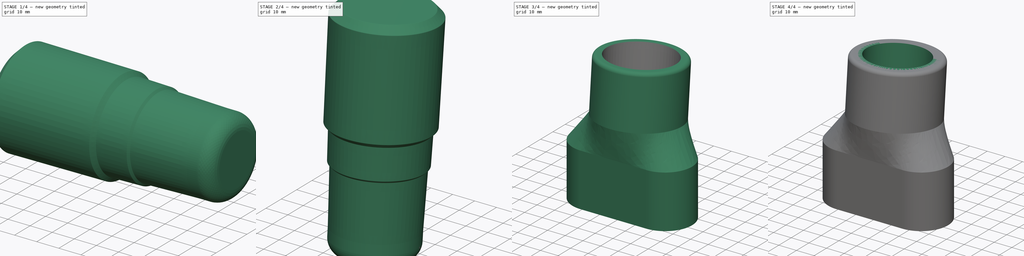
[diagram: build sequence overview — one tinted view per stage of 4, left to right]
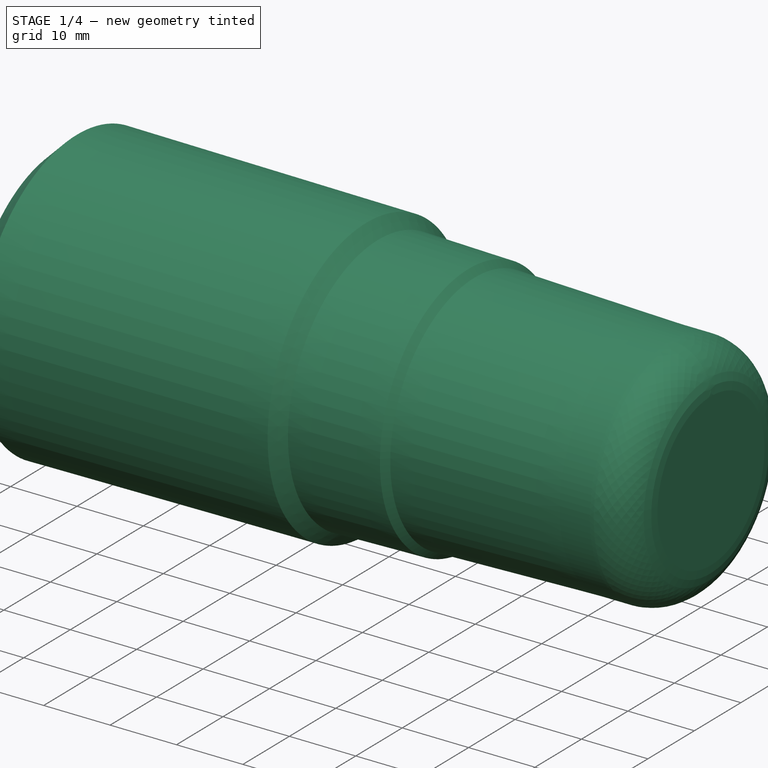
[diagram: stage 1 of 4 — iso view after this stage's code; geometry added in this stage tinted green]
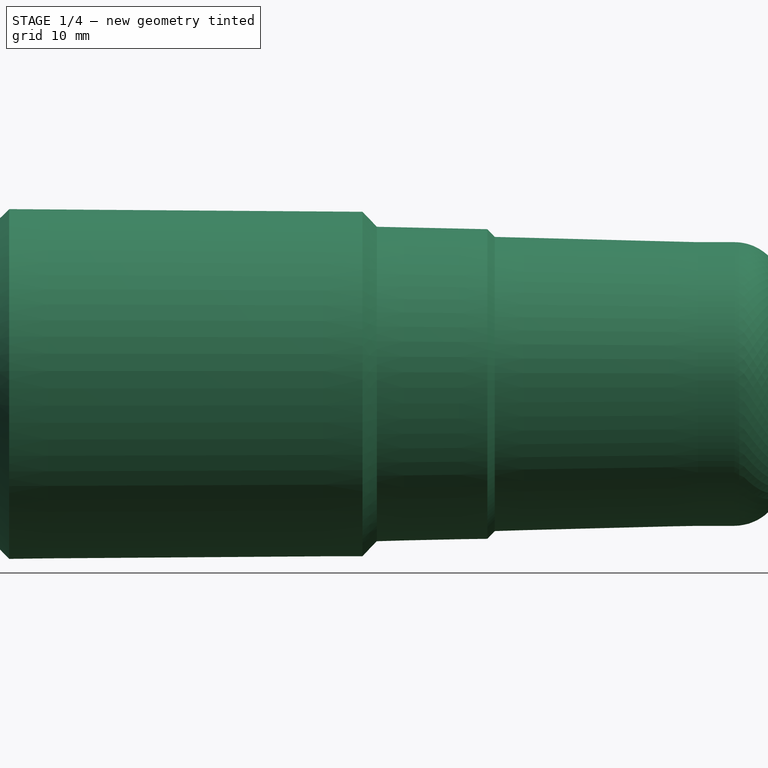
[diagram: stage 1 of 4 — front view after this stage's code; geometry added in this stage tinted green]
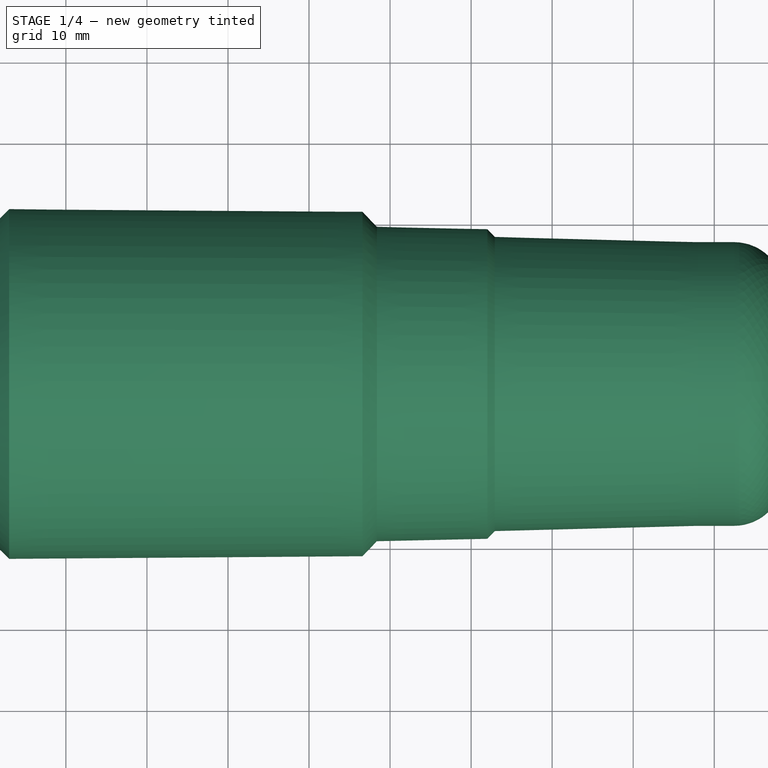
[diagram: stage 1 of 4 — top view after this stage's code; geometry added in this stage tinted green]
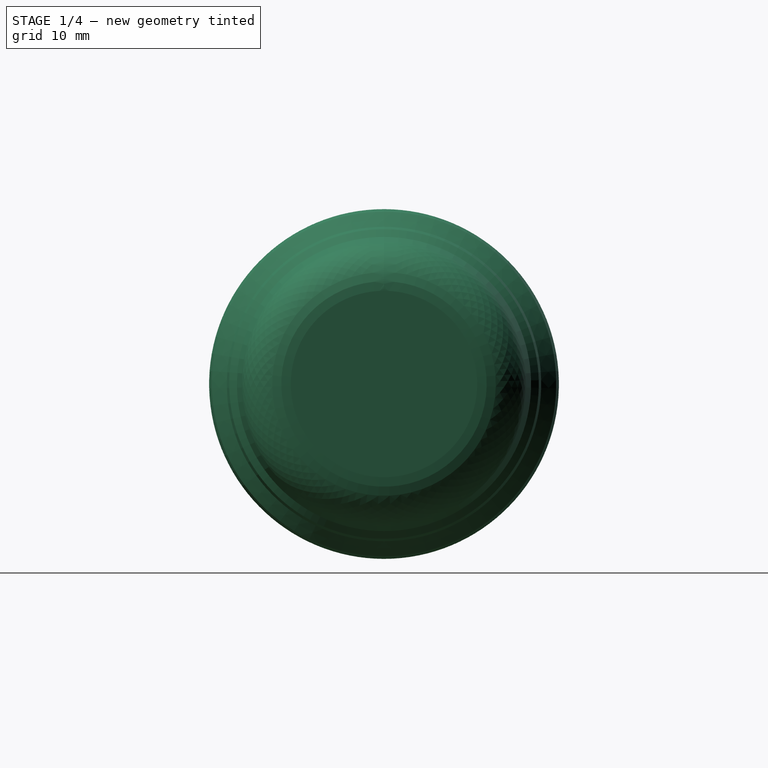
[diagram: stage 1 of 4 — right view after this stage's code; geometry added in this stage tinted green]
FCSTD DOCUMENT  (FreeCAD 2021.0205R23662 +3201 (Git))
Label: DewaltFinishSander
License: Creative Commons Attribution-NonCommercial
LicenseURL: http://creativecommons.org/licenses/by-nc/4.0/
objects: Sketcher::SketchObject×3, PartDesign::Pad×2, PartDesign::Body×2, PartDesign::AdditiveLoft×1, PartDesign::Fillet×1, PartDesign::Revolution×1, PartDesign::Chamfer×1, Part::Compound×1, Part::Offset×1, Part::Feature×1, Part::Cut×1
note: 27 computed .brp shape members not serialized (recipe doc carries the construction recipe); baked Part::Feature solids carry a one-line shape summary decoded from their .brp

FEATURE [PartDesign::Body] Body
  AutoGroupSolids = false
  ExportMode = 0
  Group = -> [Sketch,Pad,Sketch001,AdditiveLoft,Pad001,Fillet]
  Origin = -> Origin
  Tip = -> Fillet
  _ExportChildren = -> [Pad,AdditiveLoft,Pad001,Fillet]
  _GroupVersion = 1
FEATURE [Sketcher::SketchObject] Sketch002
  FullyConstrained = false
  MapMode = 5
  Placement = pos=(0,0,0) rot=(1,0,0;1.5708rad)
  Support = -> [XZ_Plane001]
  sketch-geometry (12):
    g0: LineSegment StartX=0 StartY=21.6 StartZ=0 EndX=46.5987 EndY=21.25 EndZ=0
    g1: LineSegment StartX=46.5987 StartY=21.25 StartZ=0 EndX=48.3691 EndY=19.4 EndZ=0
    g2: LineSegment StartX=48.3691 StartY=19.4 StartZ=0 EndX=62.0091 EndY=19.1 EndZ=0
    g3: LineSegment StartX=62.0091 StartY=19.1 StartZ=0 EndX=62.9111 EndY=18.15 EndZ=0
    g4: LineSegment StartX=62.9111 StartY=18.15 StartZ=0 EndX=87.989 EndY=17.5 EndZ=0
    g5: LineSegment StartX=98.5 StartY=0 StartZ=0 EndX=0 EndY=0 EndZ=0
    g6: LineSegment StartX=0 StartY=0 StartZ=0 EndX=0 EndY=21.6 EndZ=0
    g7: LineSegment [constr] StartX=46.5987 StartY=21.25 StartZ=0 EndX=48.3691 EndY=19.4 EndZ=0
    g8: LineSegment [constr] StartX=62.0091 StartY=19.1 StartZ=0 EndX=62.9111 EndY=18.15 EndZ=0
    g9: LineSegment StartX=87.989 StartY=17.5 StartZ=0 EndX=92.5 EndY=17.5 EndZ=0
    g10: ArcOfCircle CenterX=92.5 CenterY=11.5 CenterZ=0 NormalX=0 NormalY=0 NormalZ=1 AngleXU=0 Radius=6 StartAngle=1.66667e-07 EndAngle=1.5708
    g11: LineSegment StartX=98.5 StartY=11.5 StartZ=0 EndX=98.5 EndY=0 EndZ=0
  constraints (34):
    c: PointOnObject(g0,g-2)
    c: Coincident(g0,g1)
    c: Coincident(g1,g2)
    c: Coincident(g3,g4)
    c: Coincident(g5,g6)
    c: Coincident(g6,g0)
    c: PointOnObject(g5,g-2)
    c: Distance(g0) = 46.6
    c: Distance(g-1,g0) = 21.6
    c: DistanceY(g0) = 21.25
    c: DistanceY(g1) = 19.4
    c: DistanceY(g2) = 19.1
    c: DistanceY(g3) = 18.15
    c: DistanceY(g4) = 17.5
    c: Horizontal(g5)
    c: PointOnObject(g7,g0)
    c: PointOnObject(g7,g2)
    c: Angle(g2,g7) = 2.35619
    c: Distance(g5) = 98.5
    c: Angle(g4,g8) = 2.35619
    c: DistanceY(g1,g7) = 1.85
    c: Coincident(g2,g3)
    c: Coincident(g2,g8)
    c: DistanceX(g2,g2) = 13.64
    c: Coincident(g3,g8)
    c: Distance(g3) = 1.31
    c: Angle(g2,g1) = 2.35619
    c: Horizontal(g9)
    c: Tangent(g10,g9) = 1.5708
    c: PointOnObject(g5,g-1)
    c: Coincident(g11,g10)
    c: Coincident(g11,g5)
    c: Vertical(g11)
    c: Coincident(g4,g9)
FEATURE [PartDesign::Revolution] Revolution
  Angle = 360
  Axis = (1,0,0)
  Base = (0,0,0)
  ClaimChildren = false
  Fit = 0
  FitJoin = 0
  InnerFit = 0
  InnerFitJoin = 0
  NewSolid = false
  Placement = pos=(0,0,0) rot=(1,0,0;1.5708rad)
  Profile = -> Sketch002
  ReferenceAxis = -> X_Axis001
  Suppress = false
FEATURE [PartDesign::Chamfer] Chamfer
  Angle = 45
  Base = -> Revolution [Edge2]
  BaseFeature = -> Revolution
  ChamferType = 0
  FlipDirection = false
  NewSolid = false
  Placement = pos=(0,0,0) rot=(1,0,0;1.5708rad)
  Size = 3
  Size2 = 1
  SupportTransform = false
  Suppress = false
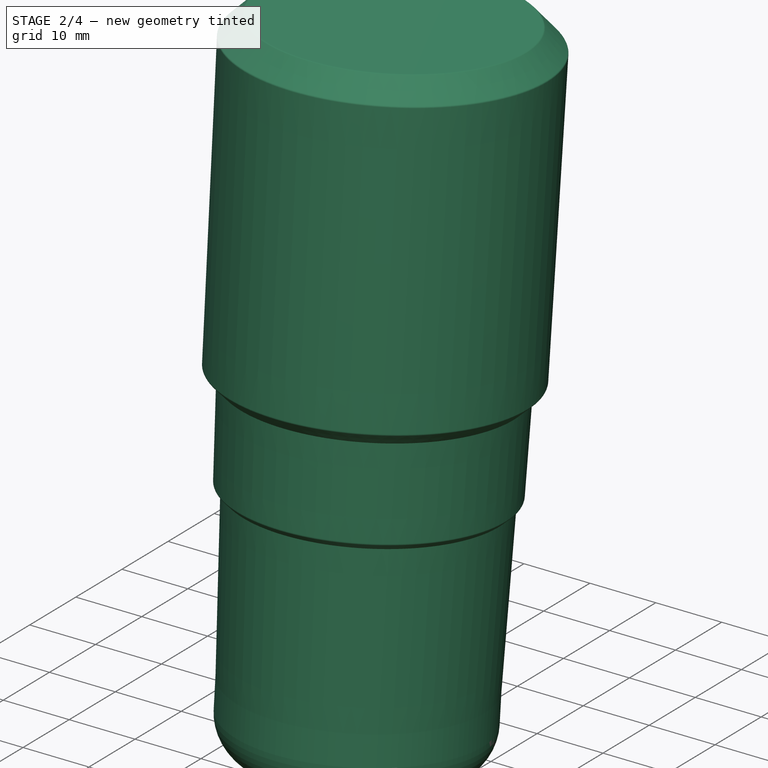
[diagram: stage 2 of 4 — iso view after this stage's code; geometry added in this stage tinted green]
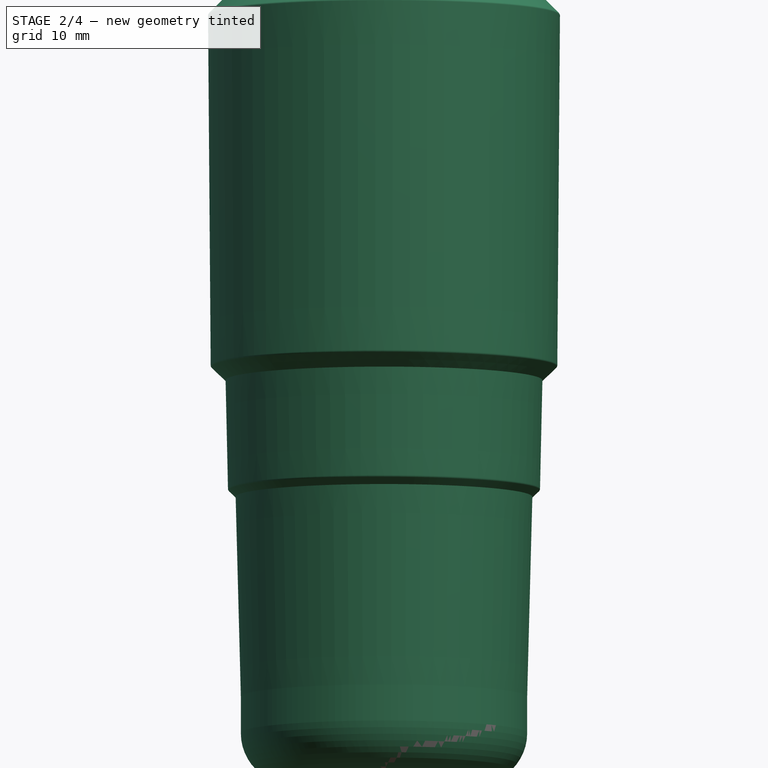
[diagram: stage 2 of 4 — front view after this stage's code; geometry added in this stage tinted green]
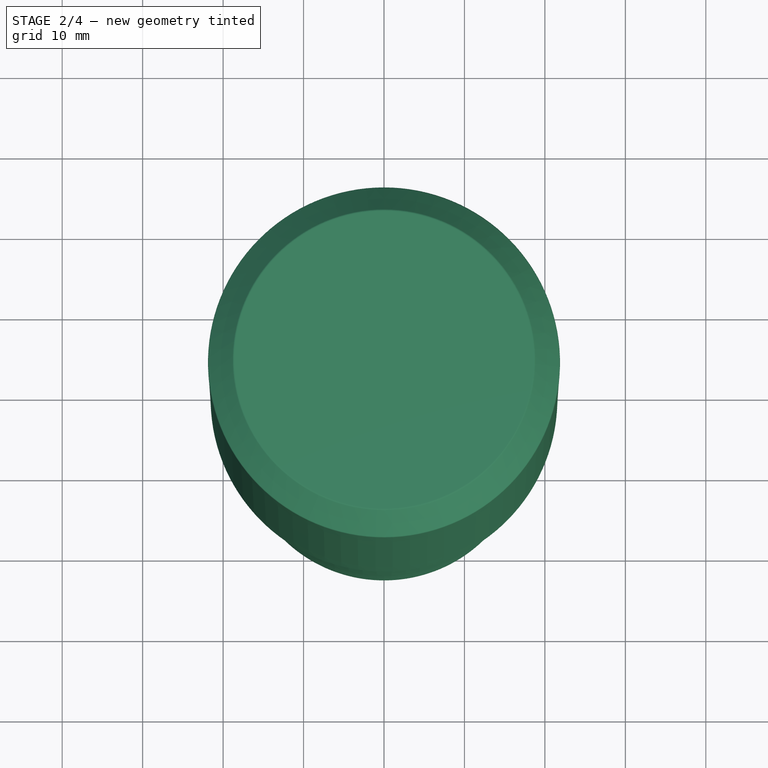
[diagram: stage 2 of 4 — top view after this stage's code; geometry added in this stage tinted green]
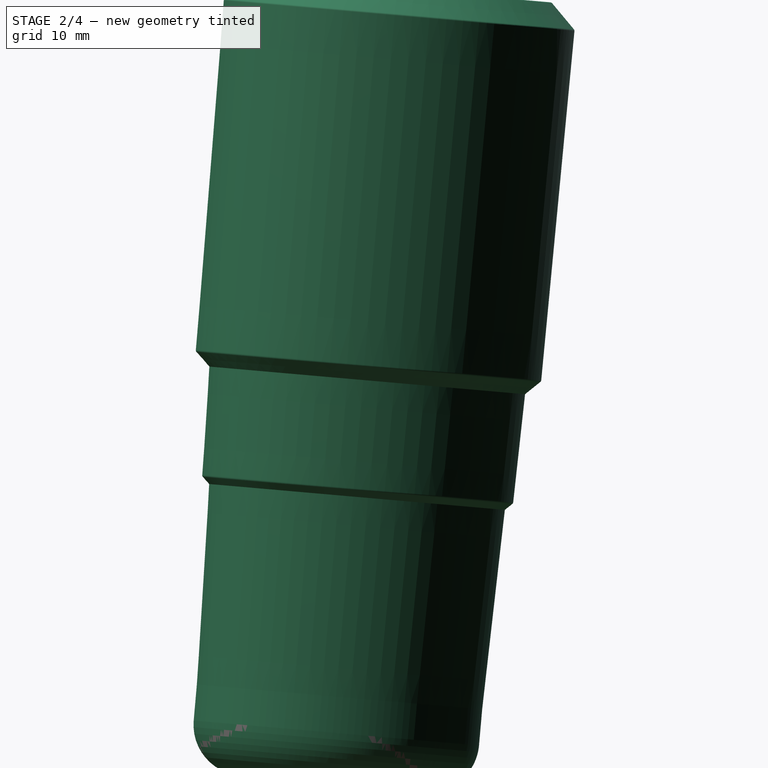
[diagram: stage 2 of 4 — right view after this stage's code; geometry added in this stage tinted green]
FEATURE [PartDesign::Body] Body001  label="Nozzle"
  AutoGroupSolids = false
  ExportMode = 0
  Group = -> [Sketch002,Revolution,Chamfer]
  Origin = -> Origin001
  SingleSolid = true
  Tip = -> Chamfer
  _ExportChildren = -> [Revolution,Chamfer]
  _GroupVersion = 1
FEATURE [Part::Compound] Compound
  Links = -> [Body001]
  Placement = pos=(6.7e-15,13.2481,111.956) rot=(0.593426,-0.593426,-0.543775;4.13769rad)
FEATURE [Part::Offset] Offset
  Fill = false
  Intersection = false
  Join = 0
  Mode = 0
  SelfIntersection = false
  Source = -> Compound
  Value = 0.3
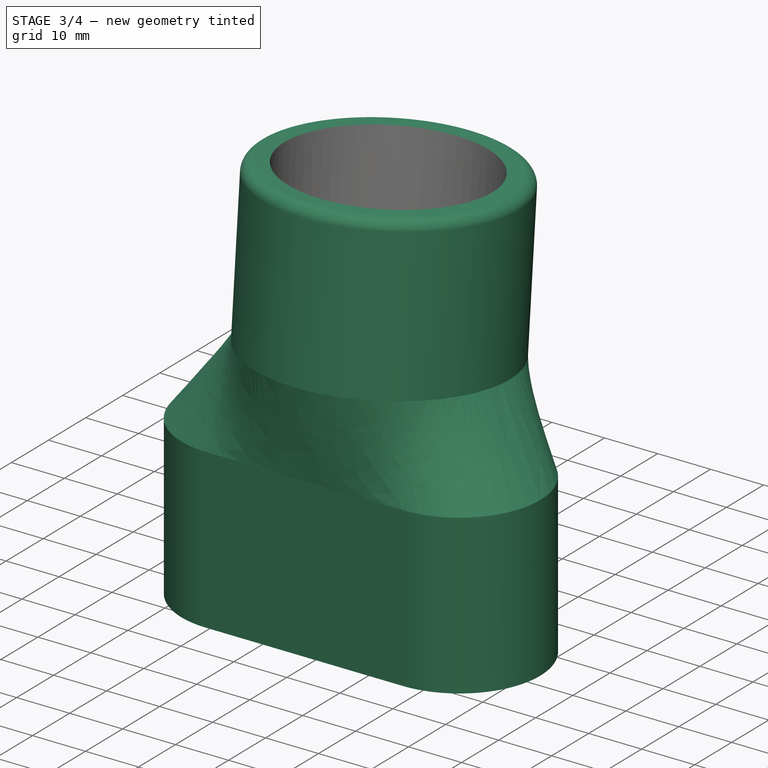
[diagram: stage 3 of 4 — iso view after this stage's code; geometry added in this stage tinted green]
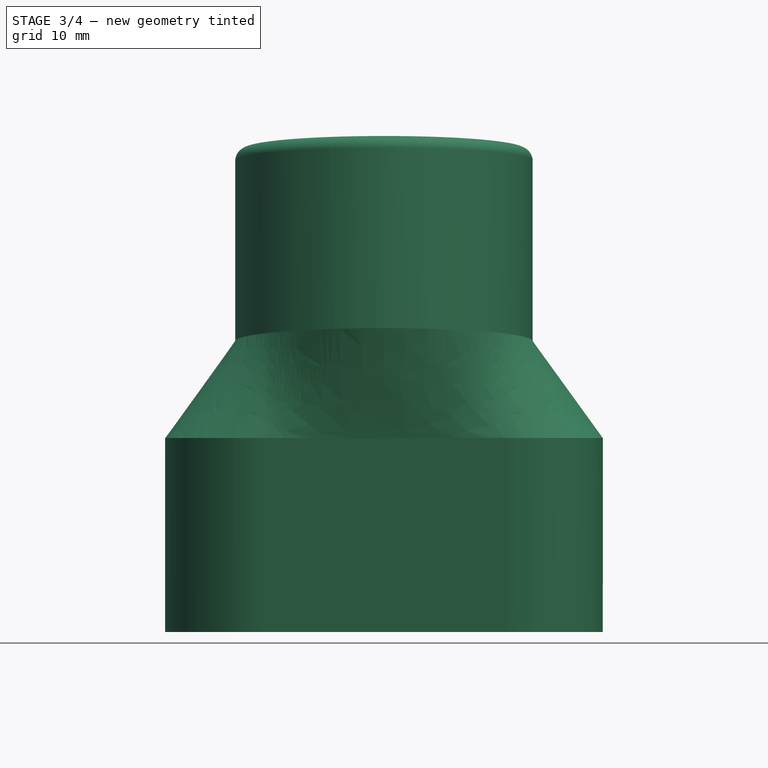
[diagram: stage 3 of 4 — front view after this stage's code; geometry added in this stage tinted green]
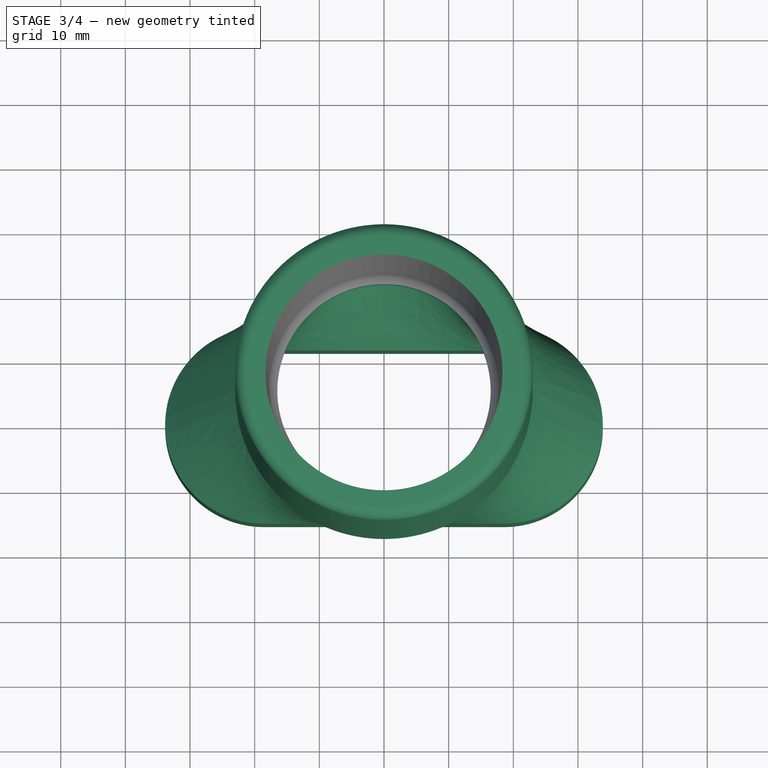
[diagram: stage 3 of 4 — top view after this stage's code; geometry added in this stage tinted green]
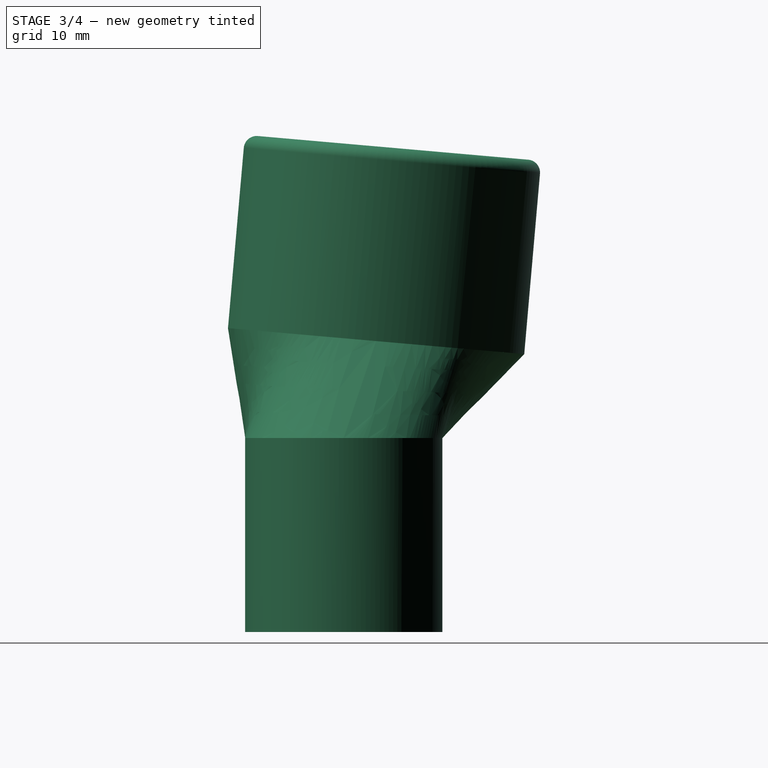
[diagram: stage 3 of 4 — right view after this stage's code; geometry added in this stage tinted green]
FEATURE [Sketcher::SketchObject] Sketch
  FullyConstrained = true
  sketch-geometry (9):
    g0: ArcOfCircle CenterX=-18.6 CenterY=9e-16 CenterZ=0 NormalX=0 NormalY=0 NormalZ=1 AngleXU=0 Radius=11.55 StartAngle=1.5708 EndAngle=4.71239
    g1: ArcOfCircle CenterX=18.6 CenterY=-9e-16 CenterZ=0 NormalX=0 NormalY=0 NormalZ=1 AngleXU=0 Radius=11.55 StartAngle=4.71239 EndAngle=7.85398
    g2: LineSegment StartX=-18.6 StartY=-11.55 StartZ=0 EndX=18.6 EndY=-11.55 EndZ=0
    g3: LineSegment StartX=-18.6 StartY=11.55 StartZ=0 EndX=18.6 EndY=11.55 EndZ=0
    g4: ArcOfCircle CenterX=-18.6 CenterY=9e-16 CenterZ=0 NormalX=0 NormalY=0 NormalZ=1 AngleXU=0 Radius=15.25 StartAngle=1.5708 EndAngle=4.71239
    g5: ArcOfCircle CenterX=18.6 CenterY=-9e-16 CenterZ=0 NormalX=0 NormalY=0 NormalZ=1 AngleXU=0 Radius=15.25 StartAngle=4.71239 EndAngle=7.85398
    g6: LineSegment StartX=-18.6 StartY=-15.25 StartZ=0 EndX=18.6 EndY=-15.25 EndZ=0
    g7: LineSegment StartX=-18.6 StartY=15.25 StartZ=0 EndX=18.6 EndY=15.25 EndZ=0
    g8: LineSegment [constr] StartX=-30.15 StartY=0 StartZ=0 EndX=30.15 EndY=0 EndZ=0
  constraints (21):
    c: Tangent(g0,g3) = 1.5708
    c: Tangent(g0,g2) = -1.5708
    c: Tangent(g2,g1) = -1.5708
    c: Tangent(g3,g1) = 1.5708
    c: Horizontal(g2)
    c: Equal(g0,g1)
    c: Radius(g1) = 11.55
    c: Symmetric(g0,g1,g-1)
    c: Tangent(g4,g7) = 1.5708
    c: Tangent(g4,g6) = -1.5708
    c: Tangent(g6,g5) = -1.5708
    c: Tangent(g7,g5) = 1.5708
    c: Horizontal(g6)
    c: Radius(g5) = 15.25
    c: Coincident(g5,g1)
    c: Coincident(g4,g0)
    c: PointOnObject(g8,g0)
    c: PointOnObject(g8,g1)
    c: Horizontal(g8)
    c: PointOnObject(g8,g-1)
    c: DistanceX(g8,g8) = 60.3
FEATURE [PartDesign::Pad] Pad
  ClaimChildren = false
  Direction = (1,1,1)
  Fit = 0
  FitJoin = 0
  InnerFit = 0
  InnerFitJoin = 0
  InnerTaperAngle = 0
  InnerTaperAngleRev = 0
  Length = 30
  Length2 = 100
  NewSolid = false
  Profile = -> Sketch
  Reversed = true
  Suppress = false
  Type = 0
FEATURE [Sketcher::SketchObject] Sketch001
  AttachmentOffset = pos=(0,5,15) rot=(-1,0,0;0.087266rad)
  FullyConstrained = true
  MapMode = 5
  Placement = pos=(0,5,15) rot=(-1,0,0;0.087266rad)
  Support = -> [XY_Plane]
  sketch-geometry (2):
    g0: Circle CenterX=0 CenterY=0 CenterZ=0 NormalX=0 NormalY=0 NormalZ=1 AngleXU=0 Radius=16.5
    g1: Circle CenterX=0 CenterY=0 CenterZ=0 NormalX=0 NormalY=0 NormalZ=1 AngleXU=0 Radius=23
  constraints (4):
    c: Coincident(g0,g-1)
    c: Coincident(g1,g0)
    c: Radius(g0) = 16.5
    c: Radius(g1) = 23
FEATURE [PartDesign::AdditiveLoft] AdditiveLoft
  BaseFeature = -> Pad
  ClaimChildren = false
  Closed = false
  Fit = 0
  FitJoin = 0
  InnerFit = 0
  InnerFitJoin = 0
  NewSolid = false
  Profile = -> Sketch
  Ruled = false
  Sections = -> [Sketch001]
  Suppress = false
FEATURE [Part::Feature] ShapeCopy  label="Body001"
  shape: bbox 69.53 x 51.19 x 76.87 mm, 23 faces (baked)
FEATURE [Part::Cut] Cut
  Base = -> ShapeCopy
  Tool = -> Offset
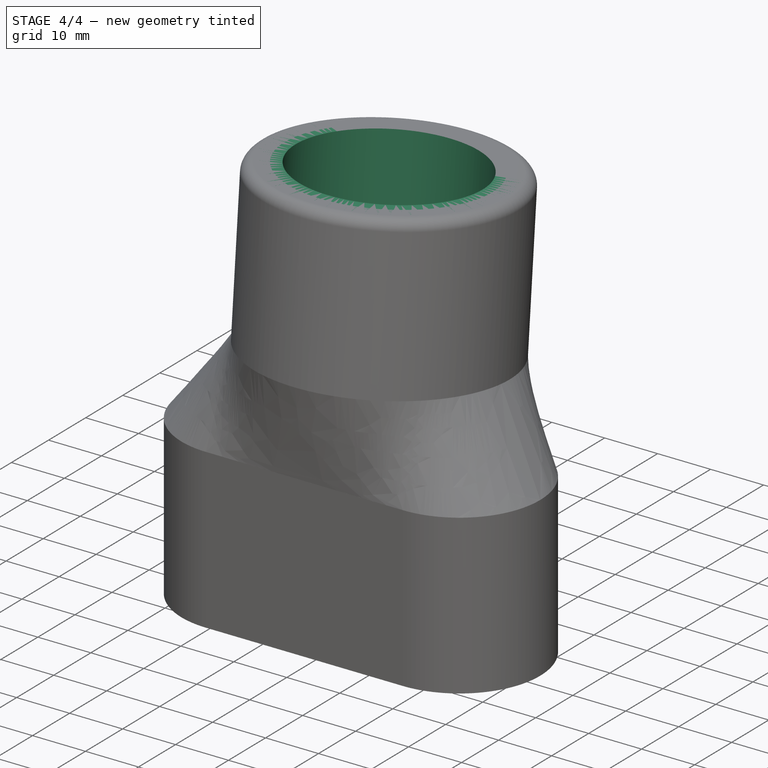
[diagram: stage 4 of 4 — iso view after this stage's code; geometry added in this stage tinted green]
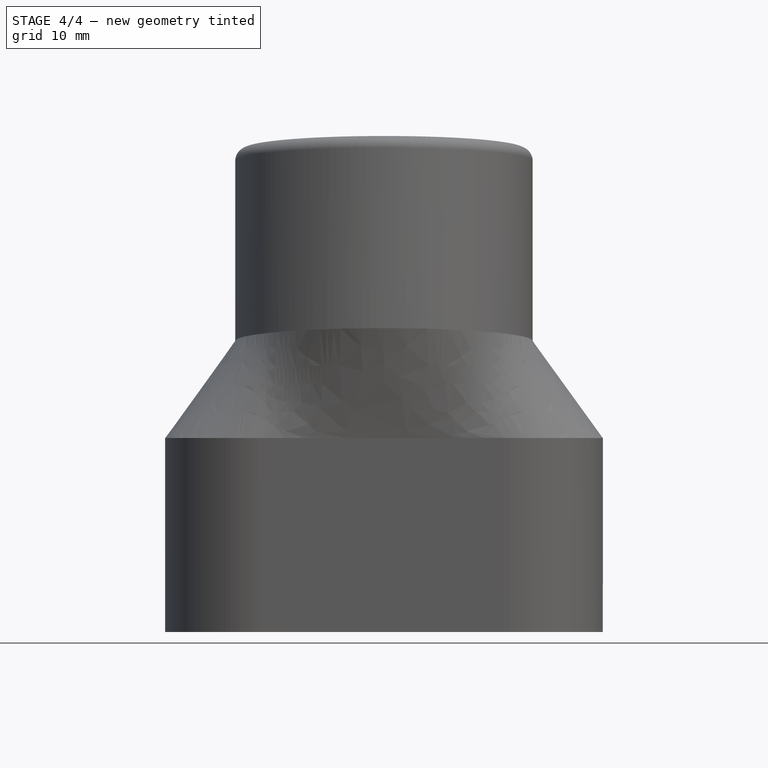
[diagram: stage 4 of 4 — front view after this stage's code; geometry added in this stage tinted green]
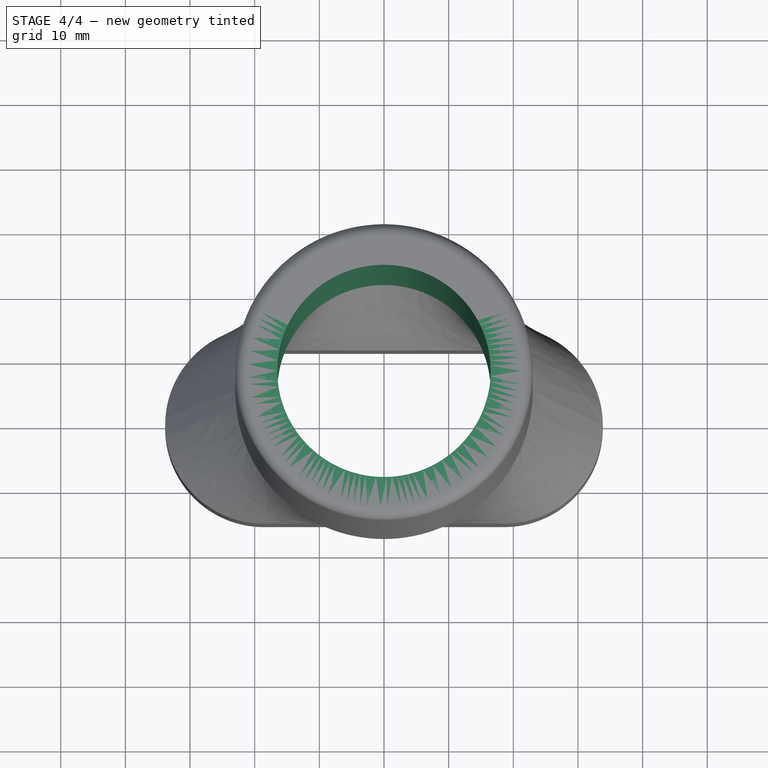
[diagram: stage 4 of 4 — top view after this stage's code; geometry added in this stage tinted green]
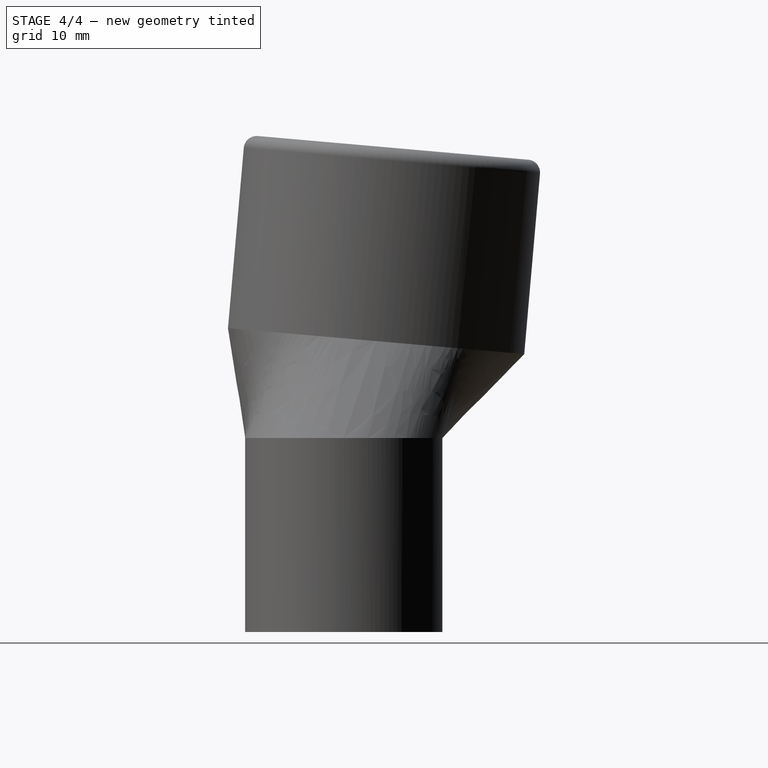
[diagram: stage 4 of 4 — right view after this stage's code; geometry added in this stage tinted green]
FEATURE [PartDesign::Pad] Pad001
  BaseFeature = -> AdditiveLoft
  ClaimChildren = false
  Direction = (1,1,1)
  Fit = 0
  FitJoin = 0
  InnerFit = 0
  InnerFitJoin = 0
  InnerTaperAngle = 0
  InnerTaperAngleRev = 0
  Length = 30
  Length2 = 100
  NewSolid = false
  Profile = -> Sketch001
  Suppress = false
  Type = 0
FEATURE [PartDesign::Fillet] Fillet
  Base = -> Pad001 [Edge28]
  BaseFeature = -> Pad001
  NewSolid = false
  Radius = 2
  SupportTransform = false
  Suppress = false
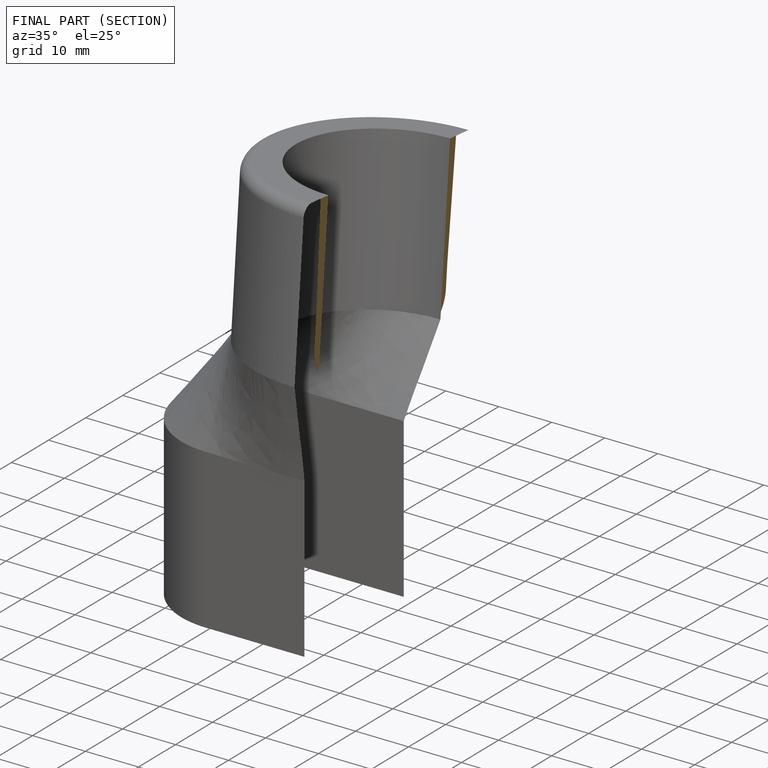
[diagram: finished part — half-section view (interior)]
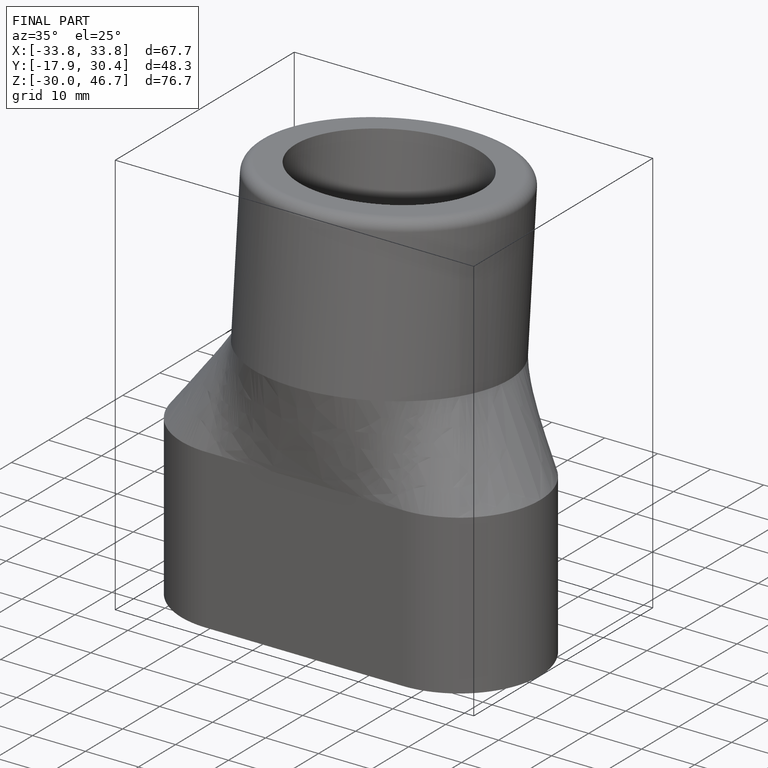
[diagram: finished part — iso view with bounding-box wireframe]
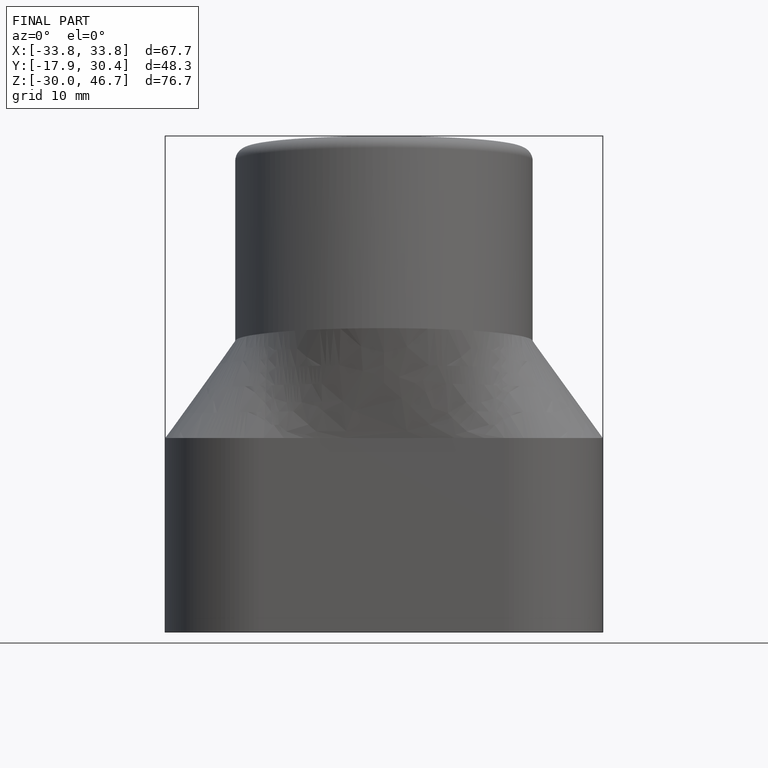
[diagram: finished part — front view with bounding-box wireframe]
